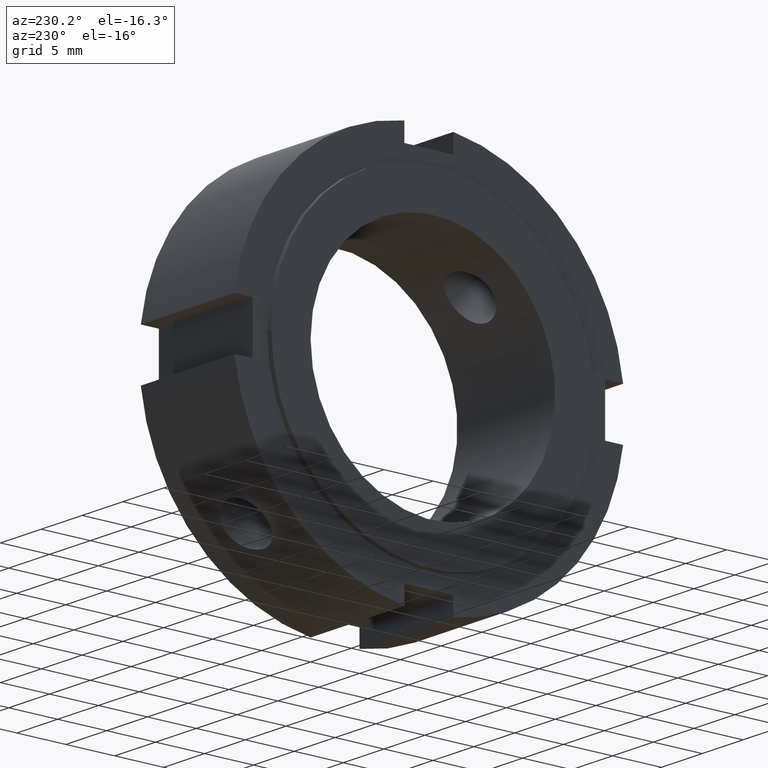
[diagram: clean part render]
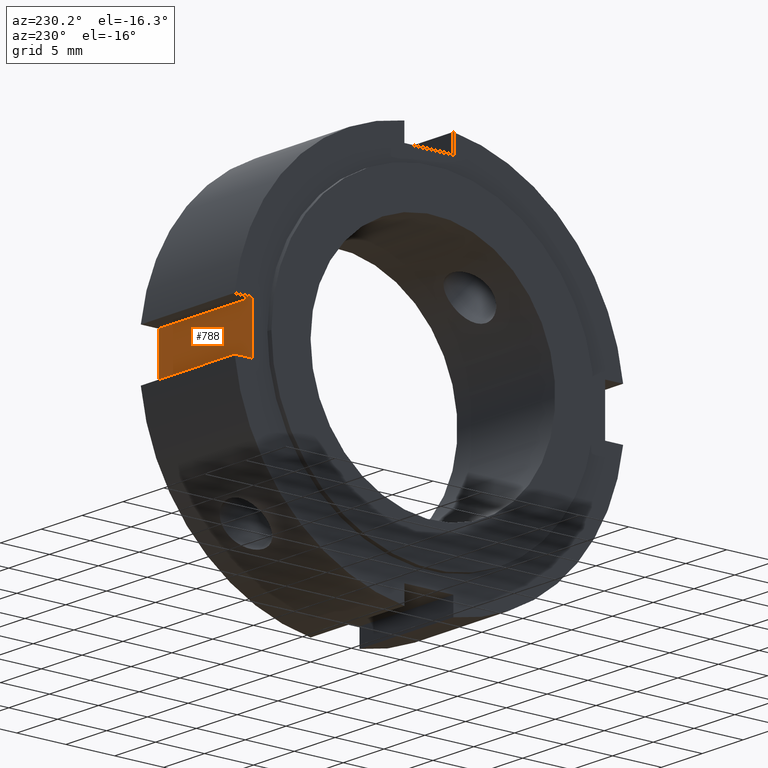
[diagram: same view with one face highlighted and labeled with its STEP entity id]
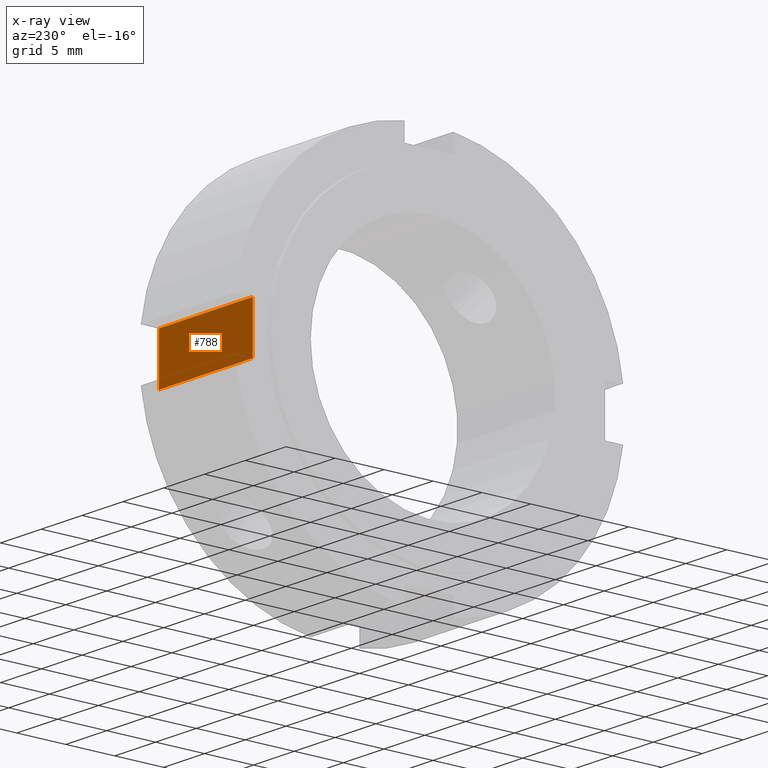
[diagram: x-ray of the same camera — body ghosted, the highlighted face saturated]
A machine part, auxiliary view. The second image highlights one B-rep face of the part: STEP entity #788.
The next image is the same camera in x-ray: the body ghosted, the highlighted face saturated — about 0% of this face is hidden behind the body in this view.
In plain terms, the highlighted planar face has unit normal (0, -1, 0).
Its self-contained STEP definition (entity closure, byte-faithful):
#679=CARTESIAN_POINT('',(11.999999999999996,18.0,-2.500000000000000));
#680=VERTEX_POINT('',#679);
#687=CARTESIAN_POINT('',(11.999999999999996,18.0,2.500000000000000));
#688=VERTEX_POINT('',#687);
#689=CARTESIAN_POINT('',(11.999999999999996,18.0,-2.499999999999999));
#690=DIRECTION('',(0.0,0.0,1.0));
#691=VECTOR('',#690,4.999999999999998);
#692=LINE('',#689,#691);
#693=EDGE_CURVE('',#680,#688,#692,.T.);
#729=CARTESIAN_POINT('',(0.499999999999998,18.0,-2.500000000000000));
#730=VERTEX_POINT('',#729);
#737=CARTESIAN_POINT('',(11.999999999999996,18.0,-2.500000000000000));
#738=DIRECTION('',(-1.0,0.0,0.0));
#739=VECTOR('',#738,11.500000000000000);
#740=LINE('',#737,#739);
#741=EDGE_CURVE('',#680,#730,#740,.T.);
#753=CARTESIAN_POINT('',(0.499999999999998,18.0,2.500000000000000));
#754=VERTEX_POINT('',#753);
#763=CARTESIAN_POINT('',(11.999999999999996,18.0,2.500000000000000));
#764=DIRECTION('',(-1.0,0.0,0.0));
#765=VECTOR('',#764,11.500000000000000);
#766=LINE('',#763,#765);
#767=EDGE_CURVE('',#688,#754,#766,.T.);
#772=CARTESIAN_POINT('',(11.999999999999996,18.0,2.500000000000000));
#773=DIRECTION('',(0.0,-1.0,0.0));
#774=DIRECTION('',(0.0,0.0,-1.0));
#775=AXIS2_PLACEMENT_3D('',#772,#773,#774);
#776=PLANE('',#775);
#777=CARTESIAN_POINT('',(0.499999999999998,18.0,2.500000000000000));
#778=DIRECTION('',(0.0,0.0,-1.0));
#779=VECTOR('',#778,4.999999999999998);
#780=LINE('',#777,#779);
#781=EDGE_CURVE('',#754,#730,#780,.T.);
#782=ORIENTED_EDGE('',*,*,#781,.F.);
#783=ORIENTED_EDGE('',*,*,#767,.F.);
#784=ORIENTED_EDGE('',*,*,#693,.F.);
#785=ORIENTED_EDGE('',*,*,#741,.T.);
#786=EDGE_LOOP('',(#782,#783,#784,#785));
#787=FACE_OUTER_BOUND('',#786,.T.);
#788=ADVANCED_FACE('',(#787),#776,.F.);